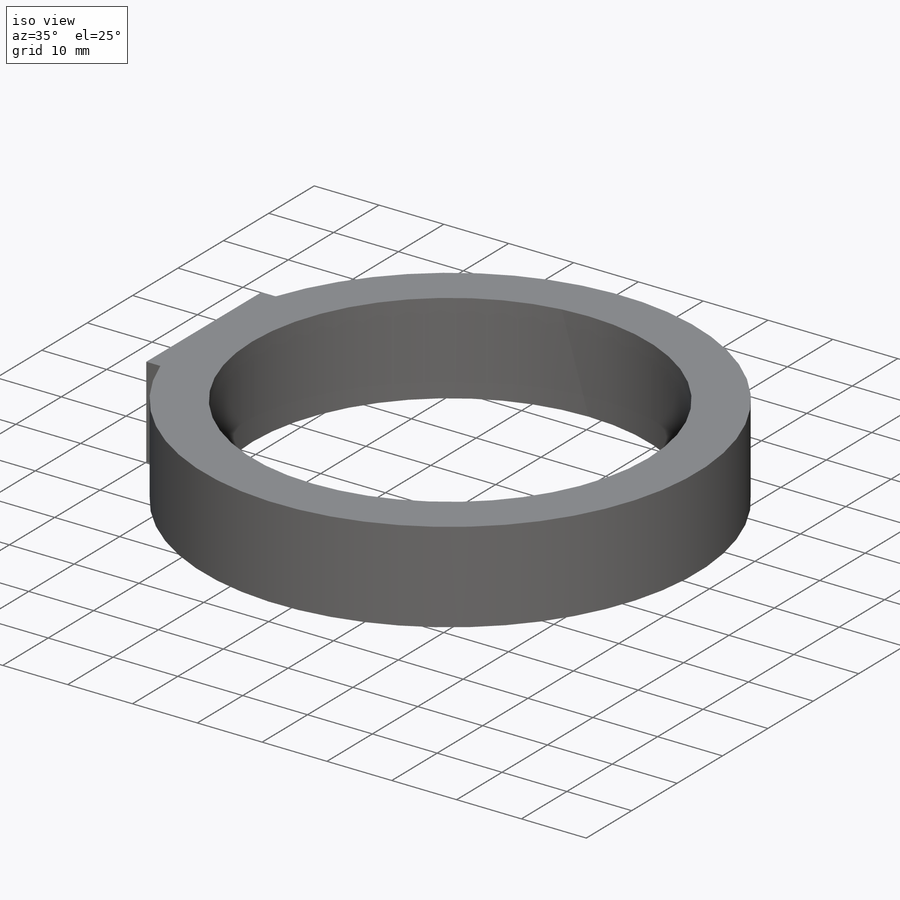
[diagram: iso view]
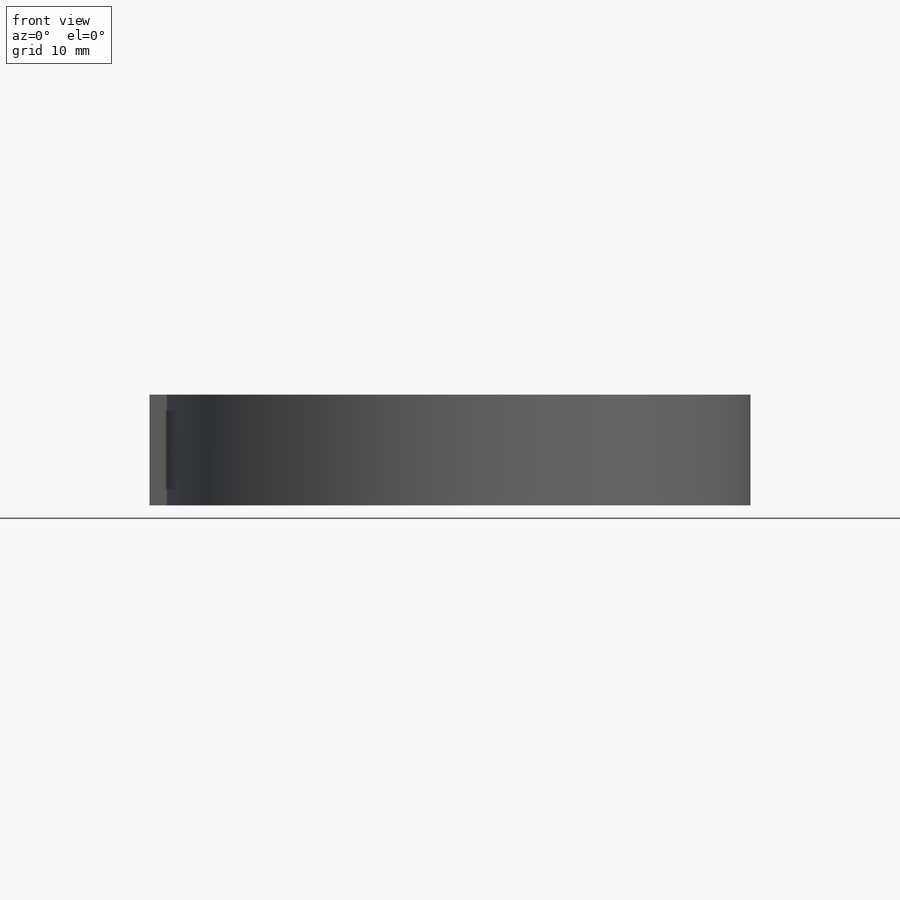
[diagram: front view]
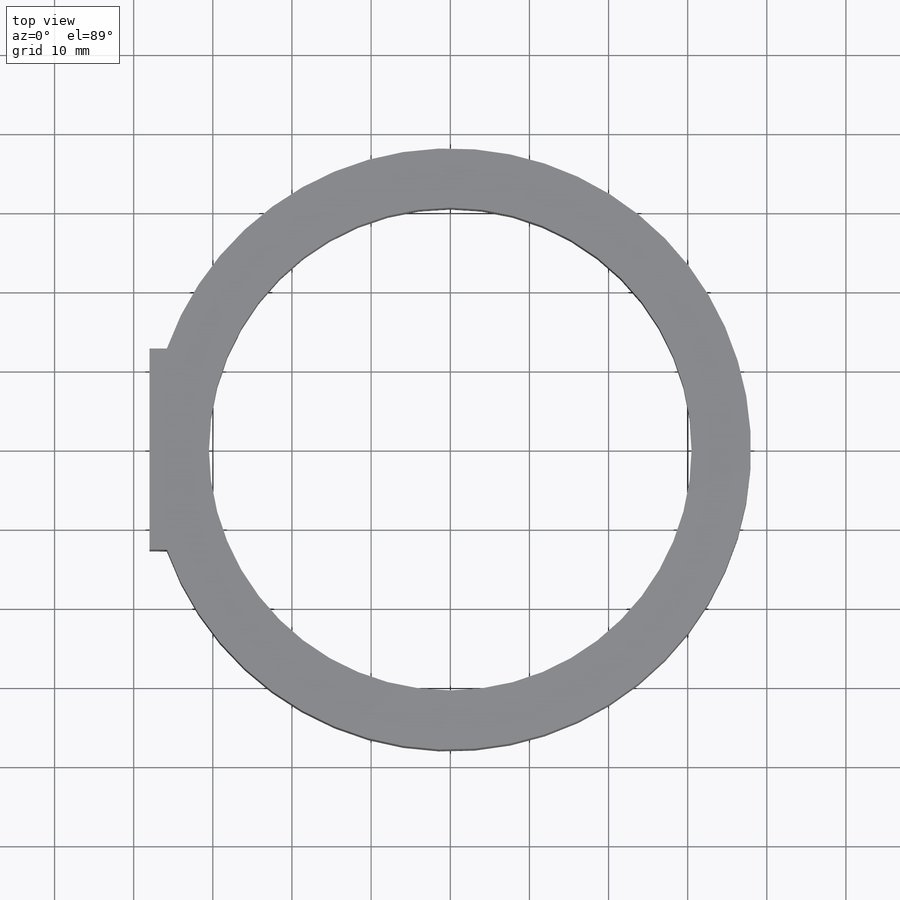
[diagram: top view]
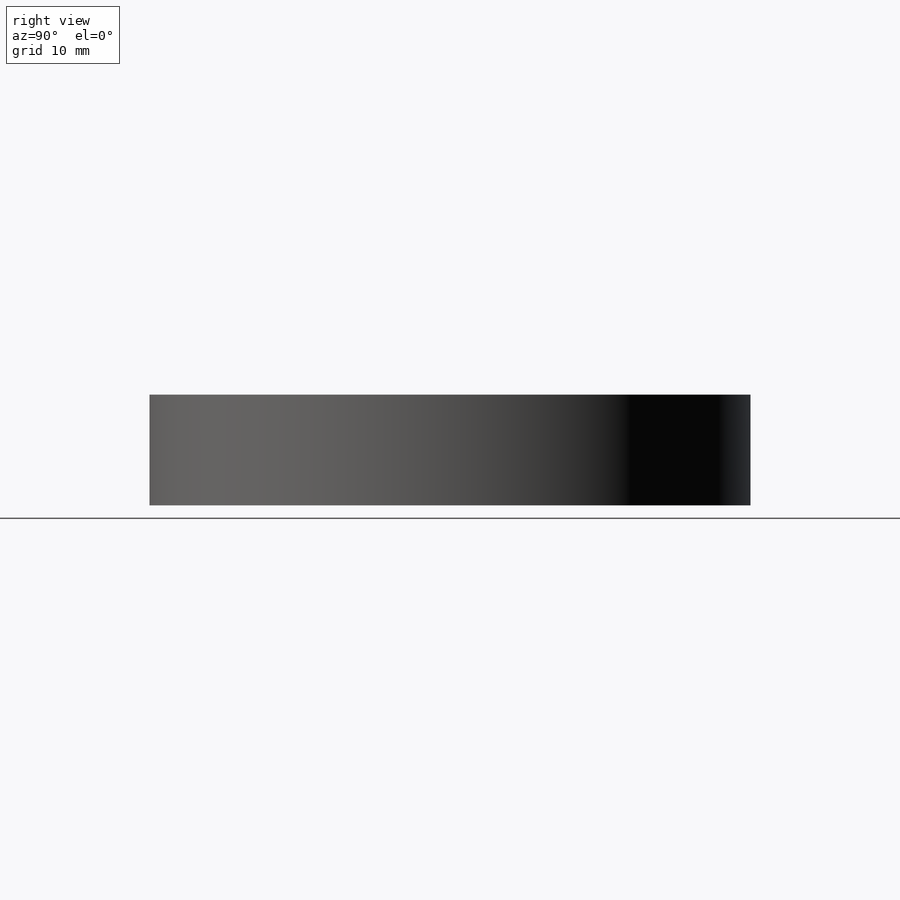
[diagram: right view]
SOLIDWORKS PART (.sldprt)
format: sldprt  version: not decoded by parser v0  size: 605,696 bytes
history: native  units: mm
features: thread x16, sketch x7, extrude x2, hole x2, material x1, revolve x1 (+11 scaffold rows collapsed)
feature tree (40):
  scaffold x11  (default folders/planes/origin — collapsed)
  material  "7075-T6, Plate (SS)"
  sketch  "Sketch1"  dims[c1.D1=65.0mm c1.D2=2.0mm c1.D3=3.0mm c1.D4=12.0mm c1.D5=17.0mm c2.D4=76.0mm c2.D6=8.6mm c2.D2=14.0mm c2.D1=65.0mm c2.D3=2.0mm c2.D5=7.0mm]
  revolve  "Revolve1"  Angle=360deg
  sketch  "Sketch6"  dims[D1=25.4mm]
  extrude  "ref flat"  [1 undecoded]
  hole  "M3x0.5 Tapped Hole1"  Diameter=2.5mm Depth=7.5mm
  sketch  "Sketch3"  dims[D1=35.25mm D2=8.0]
  sketch  "Sketch2"  dims[hole-wizard template sketch: 50 standard entries collapsed; hole parameters above]
  thread  "Hole Thread1"  Diameter=6mm  [1 undecoded]
  thread  "Hole Thread2"  Diameter=6mm  [1 undecoded]
  thread  "Hole Thread3"  Diameter=6mm  [1 undecoded]
  thread  "Hole Thread4"  Diameter=6mm  [1 undecoded]
  thread  "Hole Thread5"  Diameter=6mm  [1 undecoded]
  thread  "Hole Thread6"  Diameter=6mm  [1 undecoded]
  thread  "Hole Thread13"  Diameter=6mm  [1 undecoded]
  thread  "Hole Thread14"  Diameter=6mm  [1 undecoded]
  hole  "M3x0.5 Tapped Hole2"  Diameter=2.5mm Depth=7.5mm
  sketch  "Sketch5"  dims[c1.D1=35.25mm c1.D2=~29.359602mm c2.D2=22.5deg c2.D3=8.0]
  sketch  "Sketch4"  dims[hole-wizard template sketch: 50 standard entries collapsed; hole parameters above]
  thread  "Hole Thread7"  Diameter=6mm  [1 undecoded]
  thread  "Hole Thread8"  Diameter=6mm  [1 undecoded]
  thread  "Hole Thread9"  Diameter=6mm  [1 undecoded]
  thread  "Hole Thread10"  Diameter=6mm  [1 undecoded]
  thread  "Hole Thread11"  Diameter=6mm  [1 undecoded]
  thread  "Hole Thread12"  Diameter=6mm  [1 undecoded]
  thread  "Hole Thread15"  Diameter=6mm  [1 undecoded]
  thread  "Hole Thread16"  Diameter=6mm  [1 undecoded]
  sketch  "Sketch7"
  extrude  "Boss-Extrude1"  [1 undecoded]
decode coverage: 25 of 28 modeling features carry decoded parameters
note: ~ marks probable driven/reference dimensions
note: 18 parameter values undecoded
note: suppression state not decoded; provenance and decode notes live in map.json
